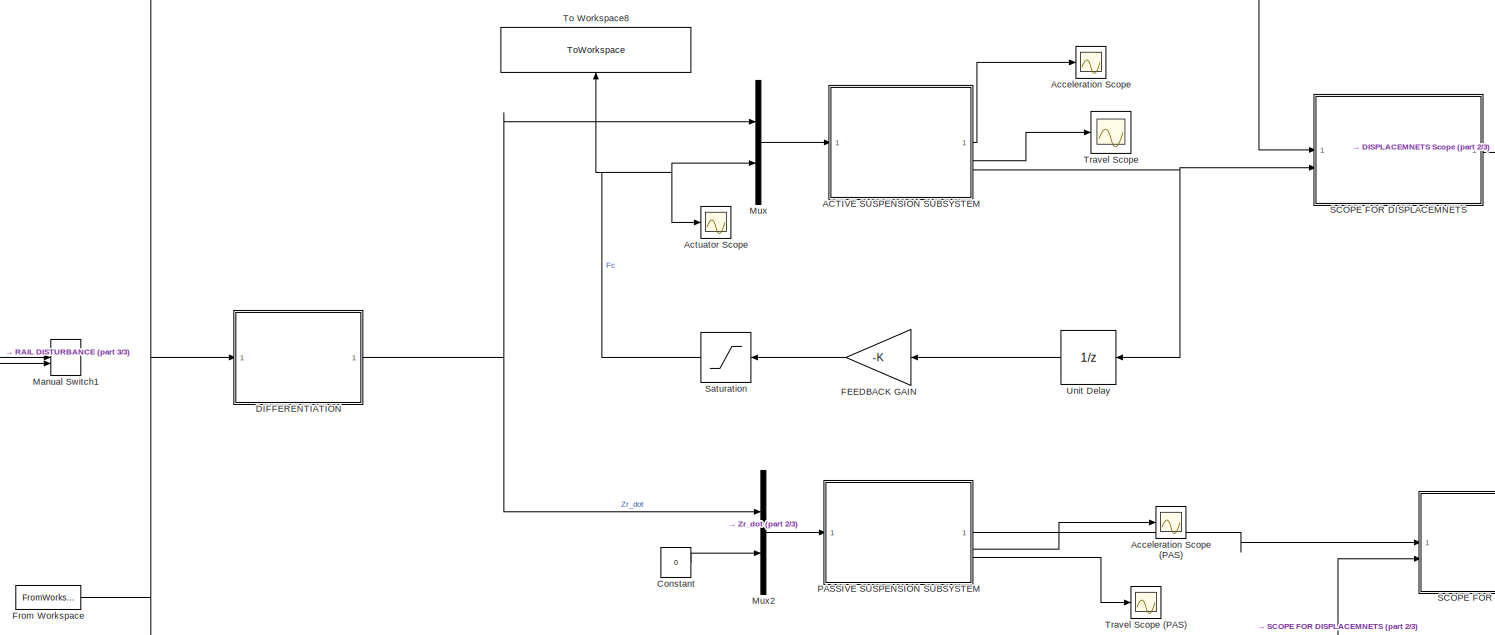
[diagram: root canvas - part 1/3, most of the canvas]
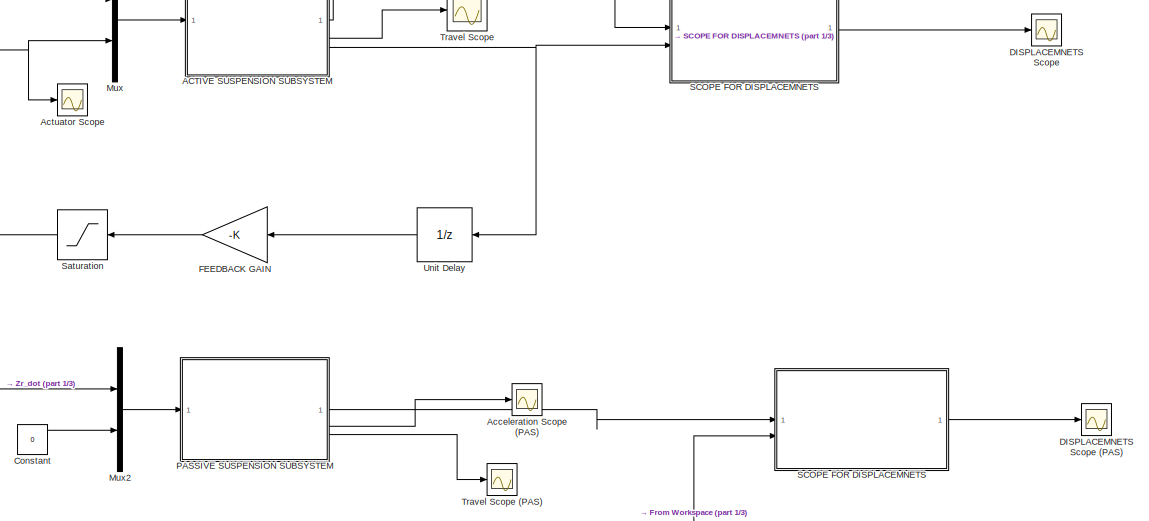
[diagram: root canvas - part 2/3, middle right region]
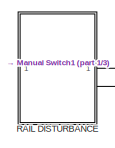
[diagram: root canvas - part 3/3, middle left region]
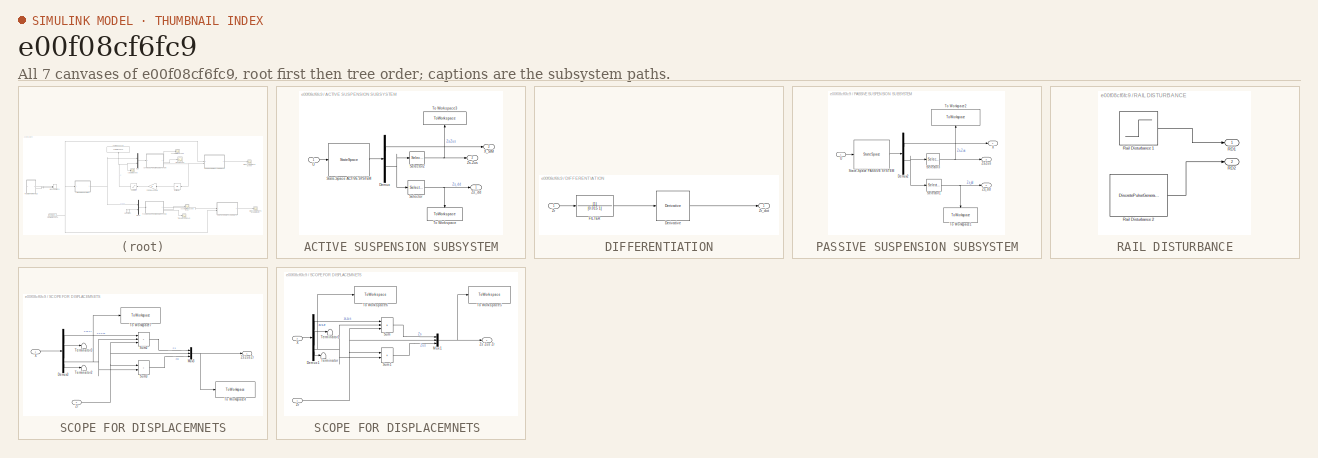
[diagram: thumbnail index - all 7 canvases of the model, root first then tree order]
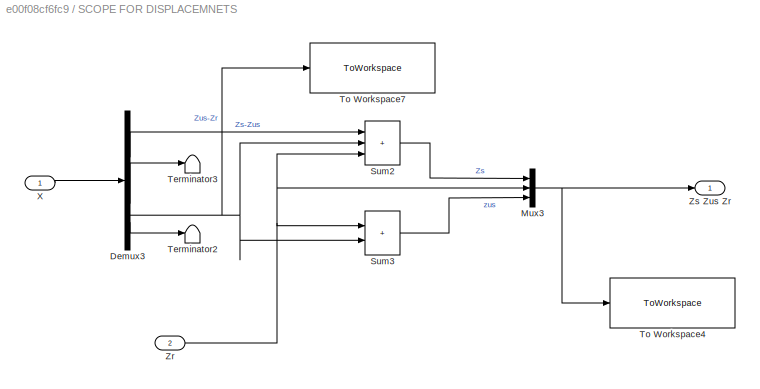
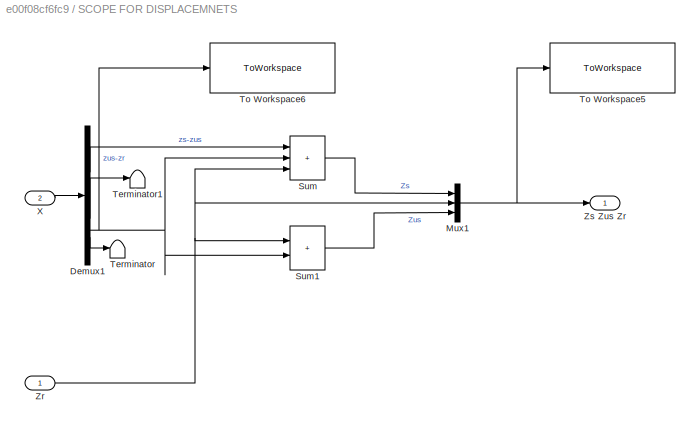
MODEL slx_e00f08cf6fc9
KIND model
CONFIG AbsTol = auto
CONFIG EnableMultiTasking = off
CONFIG FixedStep = 0.001
CONFIG MaxStep = auto
CONFIG MinStep = auto
CONFIG RelTol = 1e-3
CONFIG SampleTimeConstraint = Unconstrained
CONFIG SolverName = ode1
CONFIG StartTime = 0.0
CONFIG StopTime = Sim_Time
BLOCK [SubSystem] ACTIVE SUSPENSION SUBSYSTEM
BLOCK [Demux] ACTIVE SUSPENSION SUBSYSTEM/Demux
  Outputs = [4 2]
BLOCK [Selector] ACTIVE SUSPENSION SUBSYSTEM/Selector
  IndexOptions = Index vector (dialog)
  Indices = [2]
  InputPortWidth = 2
  OutputSizes = 1
BLOCK [Selector] ACTIVE SUSPENSION SUBSYSTEM/Selector2
  IndexOptions = Index vector (dialog)
  Indices = [1]
  InputPortWidth = 2
  OutputSizes = 1
BLOCK [StateSpace] ACTIVE SUSPENSION SUBSYSTEM/State-Space ACTIVE SYSTEM
  A = A
  B = B
  C = cat(1,eye(4), C)
  D = D
  InitialCondition = 0
BLOCK [ToWorkspace] ACTIVE SUSPENSION SUBSYSTEM/To Workspace
  FixptAsFi = on
  MaxDataPoints = inf
  NameLocation = left
  SampleTime = -1
  SaveFormat = Timeseries
  VariableName = Acceleration_ACT
BLOCK [ToWorkspace] ACTIVE SUSPENSION SUBSYSTEM/To Workspace3
  FixptAsFi = on
  MaxDataPoints = inf
  NameLocation = right
  SampleTime = -1
  SaveFormat = Timeseries
  VariableName = Suspension_Travel_ACT
BLOCK [Inport] ACTIVE SUSPENSION SUBSYSTEM/U
BLOCK [Outport] ACTIVE SUSPENSION SUBSYSTEM/X_SIM
  Port = 3
BLOCK [Outport] ACTIVE SUSPENSION SUBSYSTEM/Zs-Zus
  Port = 2
BLOCK [Outport] ACTIVE SUSPENSION SUBSYSTEM/Zs_dd
BLOCK [Scope] Acceleration Scope
  Floating = off
  NumInputPorts = 1
  ScopeSpecificationString = Simulink.scopes.TimeScopeBlockCfg('CurrentConfiguration', extmgr.ConfigurationSet(extmgr.Configuration('Core','General UI',true),extmgr.Configuration('Core','Source UI',true),extmgr.Configuration('Sources','WiredSimulink',true,'DataLoggingVariableName','ScopeData1'),extmgr.Configuration('Visuals','Time Domain',true,'SerializedDisplays',{struct('MinYLimReal','-3.31444','MaxYLimReal','8.71832','YLab...<+1392ch>
BLOCK [Scope] Acceleration Scope (PAS)
  Floating = off
  NumInputPorts = 1
  ScopeSpecificationString = C++SS(StrPVP('SaveName','ScopeData4'),StrPVP('LimitDataPoints','on'),StrPVP('DataFormat','Array'),StrPVP('Decimation','1'),StrPVP('BlockParamSampleInput','off'))
BLOCK [Scope] Actuator Scope
  Floating = off
  NumInputPorts = 1
  ScopeSpecificationString = Simulink.scopes.TimeScopeBlockCfg('CurrentConfiguration', extmgr.ConfigurationSet(extmgr.Configuration('Core','General UI',true),extmgr.Configuration('Core','Source UI',true),extmgr.Configuration('Sources','WiredSimulink',true,'DataLoggingVariableName','ScopeData3'),extmgr.Configuration('Visuals','Time Domain',true,'SerializedDisplays',{struct('MinYLimReal','-10692.94666','MaxYLimReal','3495.4137'...<+1447ch>
BLOCK [Constant] Constant
  Value = 0
BLOCK [SubSystem] DIFFERENTIATION
BLOCK [Derivative] DIFFERENTIATION/Derivative
BLOCK [TransferFcn] DIFFERENTIATION/FILTER
  Denominator = [0.015 1]
BLOCK [Inport] DIFFERENTIATION/Zr
BLOCK [Outport] DIFFERENTIATION/Zr_dot
BLOCK [Scope] DISPLACEMNETS Scope
  Floating = off
  NumInputPorts = 1
  ScopeSpecificationString = Simulink.scopes.TimeScopeBlockCfg('CurrentConfiguration', extmgr.ConfigurationSet(extmgr.Configuration('Core','General UI',true),extmgr.Configuration('Core','Source UI',true),extmgr.Configuration('Sources','WiredSimulink',true),extmgr.Configuration('Visuals','Time Domain',true,'SerializedDisplays',{struct('MinYLimReal','-0.00929','MaxYLimReal','0.0836','YLabelReal','','MinYLimMag','0.00000','MaxYL...<+1477ch>
BLOCK [Scope] DISPLACEMNETS Scope (PAS)
  Floating = off
  NumInputPorts = 1
  ScopeSpecificationString = C++SS(StrPVP('SaveName','ScopeData5'),StrPVP('LimitDataPoints','on'),StrPVP('DataFormat','Array'),StrPVP('Decimation','1'),StrPVP('BlockParamSampleInput','off'))
BLOCK [Gain] FEEDBACK GAIN
  Gain = -K
  Multiplication = Matrix(K*u)
BLOCK [FromWorkspace] From Workspace
  VariableName = rough_road_simin
BLOCK [ManualSwitch] Manual Switch1
BLOCK [Mux] Mux
  DisplayOption = bar
  Inputs = 2
BLOCK [Mux] Mux2
  DisplayOption = bar
  Inputs = 2
BLOCK [SubSystem] PASSIVE SUSPENSION SUBSYSTEM
BLOCK [Demux] PASSIVE SUSPENSION SUBSYSTEM/Demux2
  Outputs = [4 2]
BLOCK [Selector] PASSIVE SUSPENSION SUBSYSTEM/Selector1
  IndexOptions = Index vector (dialog)
  Indices = [2]
  InputPortWidth = 2
  OutputSizes = 1
BLOCK [Selector] PASSIVE SUSPENSION SUBSYSTEM/Selector3
  IndexOptions = Index vector (dialog)
  Indices = [1]
  InputPortWidth = 2
  OutputSizes = 1
BLOCK [StateSpace] PASSIVE SUSPENSION SUBSYSTEM/State-Space PASSIVE SYSTEM
  A = A
  B = B
  C = cat(1,eye(4), C)
  D = D
  InitialCondition = 0
BLOCK [ToWorkspace] PASSIVE SUSPENSION SUBSYSTEM/To Workspace1
  FixptAsFi = on
  MaxDataPoints = inf
  NameLocation = left
  SampleTime = -1
  SaveFormat = Timeseries
  VariableName = Acceleration_PAS
BLOCK [ToWorkspace] PASSIVE SUSPENSION SUBSYSTEM/To Workspace2
  FixptAsFi = on
  MaxDataPoints = inf
  NameLocation = right
  SampleTime = -1
  SaveFormat = Timeseries
  VariableName = Suspension_Travel_PAS
BLOCK [Inport] PASSIVE SUSPENSION SUBSYSTEM/U
BLOCK [Outport] PASSIVE SUSPENSION SUBSYSTEM/X
BLOCK [Outport] PASSIVE SUSPENSION SUBSYSTEM/Zs-Zus
  Port = 3
BLOCK [Outport] PASSIVE SUSPENSION SUBSYSTEM/Zs_dd
  Port = 2
BLOCK [SubSystem] RAIL DISTURBANCE
BLOCK [Outport] RAIL DISTURBANCE/RD1
BLOCK [Outport] RAIL DISTURBANCE/RD2
  Port = 2
BLOCK [Step] RAIL DISTURBANCE/Rail Disturbance 1
  SampleTime = 0
  Time = 0
BLOCK [DiscretePulseGenerator] RAIL DISTURBANCE/Rail Disturbance 2
  Amplitude = 0.1
  Period = 6
  PhaseDelay = .1
  PulseType = Time based
  PulseWidth = 50
BLOCK [SubSystem] SCOPE FOR DISPLACEMNETS
BLOCK [SubSystem] SCOPE FOR DISPLACEMNETS 
BLOCK [Demux] SCOPE FOR DISPLACEMNETS /Demux1
BLOCK [Mux] SCOPE FOR DISPLACEMNETS /Mux1
  DisplayOption = bar
  Inputs = 3
BLOCK [Sum] SCOPE FOR DISPLACEMNETS /Sum
  IconShape = rectangular
  Inputs = +++
BLOCK [Sum] SCOPE FOR DISPLACEMNETS /Sum1
  IconShape = rectangular
BLOCK [Terminator] SCOPE FOR DISPLACEMNETS /Terminator
BLOCK [Terminator] SCOPE FOR DISPLACEMNETS /Terminator1
BLOCK [ToWorkspace] SCOPE FOR DISPLACEMNETS /To Workspace5
  FixptAsFi = on
  MaxDataPoints = inf
  SampleTime = -1
  SaveFormat = Timeseries
  VariableName = Displacement_ACT
BLOCK [ToWorkspace] SCOPE FOR DISPLACEMNETS /To Workspace6
  FixptAsFi = on
  MaxDataPoints = inf
  SampleTime = -1
  SaveFormat = Timeseries
  VariableName = Deflection_ACT
BLOCK [Inport] SCOPE FOR DISPLACEMNETS /X
  Port = 2
BLOCK [Inport] SCOPE FOR DISPLACEMNETS /Zr
BLOCK [Outport] SCOPE FOR DISPLACEMNETS /Zs Zus Zr
BLOCK [Demux] SCOPE FOR DISPLACEMNETS/Demux3
BLOCK [Mux] SCOPE FOR DISPLACEMNETS/Mux3
  DisplayOption = bar
  Inputs = 3
BLOCK [Sum] SCOPE FOR DISPLACEMNETS/Sum2
  IconShape = rectangular
  Inputs = +++
BLOCK [Sum] SCOPE FOR DISPLACEMNETS/Sum3
  IconShape = rectangular
BLOCK [Terminator] SCOPE FOR DISPLACEMNETS/Terminator2
BLOCK [Terminator] SCOPE FOR DISPLACEMNETS/Terminator3
BLOCK [ToWorkspace] SCOPE FOR DISPLACEMNETS/To Workspace4
  FixptAsFi = on
  MaxDataPoints = inf
  SampleTime = -1
  SaveFormat = Timeseries
  VariableName = Displacement_PAS
BLOCK [ToWorkspace] SCOPE FOR DISPLACEMNETS/To Workspace7
  FixptAsFi = on
  MaxDataPoints = inf
  SampleTime = -1
  SaveFormat = Timeseries
  VariableName = Deflection_PAS
BLOCK [Inport] SCOPE FOR DISPLACEMNETS/X
BLOCK [Inport] SCOPE FOR DISPLACEMNETS/Zr
  Port = 2
BLOCK [Outport] SCOPE FOR DISPLACEMNETS/Zs Zus Zr
BLOCK [Saturate] Saturation
  LowerLimit = -46730
  UpperLimit = 46730
BLOCK [ToWorkspace] To Workspace8
  FixptAsFi = on
  MaxDataPoints = inf
  NameLocation = right
  SampleTime = -1
  SaveFormat = Timeseries
  VariableName = ACTUATOR_FORCE
BLOCK [Scope] Travel Scope
  Floating = off
  NumInputPorts = 1
  ScopeSpecificationString = C++SS(StrPVP('SaveName','ScopeData2'),StrPVP('LimitDataPoints','on'),StrPVP('DataFormat','Array'),StrPVP('Decimation','1'),StrPVP('BlockParamSampleInput','off'))
BLOCK [Scope] Travel Scope (PAS)
  Floating = off
  NumInputPorts = 1
  ScopeSpecificationString = C++SS(StrPVP('SaveName','ScopeData3'),StrPVP('LimitDataPoints','on'),StrPVP('DataFormat','Array'),StrPVP('Decimation','1'),StrPVP('BlockParamSampleInput','off'))
BLOCK [UnitDelay] Unit Delay
  HasFrameUpgradeWarning = on
  NameLocation = top
  SampleTime = -1
LINE ACTIVE SUSPENSION SUBSYSTEM/Demux:1 -> ACTIVE SUSPENSION SUBSYSTEM/X_SIM:1
NET ACTIVE SUSPENSION SUBSYSTEM/Demux:2 -> ACTIVE SUSPENSION SUBSYSTEM/Selector2:1, ACTIVE SUSPENSION SUBSYSTEM/Selector:1
NET ACTIVE SUSPENSION SUBSYSTEM/Selector2:1 -> ACTIVE SUSPENSION SUBSYSTEM/To Workspace3:1, ACTIVE SUSPENSION SUBSYSTEM/Zs-Zus:1
NET ACTIVE SUSPENSION SUBSYSTEM/Selector:1 -> ACTIVE SUSPENSION SUBSYSTEM/To Workspace:1, ACTIVE SUSPENSION SUBSYSTEM/Zs_dd:1
LINE ACTIVE SUSPENSION SUBSYSTEM/State-Space ACTIVE SYSTEM:1 -> ACTIVE SUSPENSION SUBSYSTEM/Demux:1
LINE ACTIVE SUSPENSION SUBSYSTEM/U:1 -> ACTIVE SUSPENSION SUBSYSTEM/State-Space ACTIVE SYSTEM:1
LINE ACTIVE SUSPENSION SUBSYSTEM:1 -> Acceleration Scope:1
LINE ACTIVE SUSPENSION SUBSYSTEM:2 -> Travel Scope:1
NET ACTIVE SUSPENSION SUBSYSTEM:3 -> SCOPE FOR DISPLACEMNETS :2, Unit Delay:1
LINE Constant:1 -> Mux2:2
LINE DIFFERENTIATION/Derivative:1 -> DIFFERENTIATION/Zr_dot:1
LINE DIFFERENTIATION/FILTER:1 -> DIFFERENTIATION/Derivative:1
LINE DIFFERENTIATION/Zr:1 -> DIFFERENTIATION/FILTER:1
NET DIFFERENTIATION:1 -> Mux2:1, Mux:1
LINE FEEDBACK GAIN:1 -> Saturation:1
NET From Workspace:1 -> DIFFERENTIATION:1, SCOPE FOR DISPLACEMNETS :1, SCOPE FOR DISPLACEMNETS:2
LINE Mux2:1 -> PASSIVE SUSPENSION SUBSYSTEM:1
LINE Mux:1 -> ACTIVE SUSPENSION SUBSYSTEM:1
LINE PASSIVE SUSPENSION SUBSYSTEM/Demux2:1 -> PASSIVE SUSPENSION SUBSYSTEM/X:1
NET PASSIVE SUSPENSION SUBSYSTEM/Demux2:2 -> PASSIVE SUSPENSION SUBSYSTEM/Selector1:1, PASSIVE SUSPENSION SUBSYSTEM/Selector3:1
NET PASSIVE SUSPENSION SUBSYSTEM/Selector1:1 -> PASSIVE SUSPENSION SUBSYSTEM/To Workspace1:1, PASSIVE SUSPENSION SUBSYSTEM/Zs_dd:1
NET PASSIVE SUSPENSION SUBSYSTEM/Selector3:1 -> PASSIVE SUSPENSION SUBSYSTEM/To Workspace2:1, PASSIVE SUSPENSION SUBSYSTEM/Zs-Zus:1
LINE PASSIVE SUSPENSION SUBSYSTEM/State-Space PASSIVE SYSTEM:1 -> PASSIVE SUSPENSION SUBSYSTEM/Demux2:1
LINE PASSIVE SUSPENSION SUBSYSTEM/U:1 -> PASSIVE SUSPENSION SUBSYSTEM/State-Space PASSIVE SYSTEM:1
LINE PASSIVE SUSPENSION SUBSYSTEM:1 -> SCOPE FOR DISPLACEMNETS:1
LINE PASSIVE SUSPENSION SUBSYSTEM:2 -> Acceleration Scope (PAS):1
LINE PASSIVE SUSPENSION SUBSYSTEM:3 -> Travel Scope (PAS):1
LINE RAIL DISTURBANCE/Rail Disturbance 1:1 -> RAIL DISTURBANCE/RD1:1
LINE RAIL DISTURBANCE/Rail Disturbance 2:1 -> RAIL DISTURBANCE/RD2:1
LINE RAIL DISTURBANCE:1 -> Manual Switch1:1
LINE RAIL DISTURBANCE:2 -> Manual Switch1:2
LINE SCOPE FOR DISPLACEMNETS /Demux1:1 -> SCOPE FOR DISPLACEMNETS /Sum:1
LINE SCOPE FOR DISPLACEMNETS /Demux1:2 -> SCOPE FOR DISPLACEMNETS /Terminator1:1
NET SCOPE FOR DISPLACEMNETS /Demux1:3 -> SCOPE FOR DISPLACEMNETS /Sum1:2, SCOPE FOR DISPLACEMNETS /Sum:2, SCOPE FOR DISPLACEMNETS /To Workspace6:1
LINE SCOPE FOR DISPLACEMNETS /Demux1:4 -> SCOPE FOR DISPLACEMNETS /Terminator:1
NET SCOPE FOR DISPLACEMNETS /Mux1:1 -> SCOPE FOR DISPLACEMNETS /To Workspace5:1, SCOPE FOR DISPLACEMNETS /Zs Zus Zr:1
LINE SCOPE FOR DISPLACEMNETS /Sum1:1 -> SCOPE FOR DISPLACEMNETS /Mux1:3
LINE SCOPE FOR DISPLACEMNETS /Sum:1 -> SCOPE FOR DISPLACEMNETS /Mux1:1
LINE SCOPE FOR DISPLACEMNETS /X:1 -> SCOPE FOR DISPLACEMNETS /Demux1:1
NET SCOPE FOR DISPLACEMNETS /Zr:1 -> SCOPE FOR DISPLACEMNETS /Mux1:2, SCOPE FOR DISPLACEMNETS /Sum1:1, SCOPE FOR DISPLACEMNETS /Sum:3
LINE SCOPE FOR DISPLACEMNETS :1 -> DISPLACEMNETS Scope:1
LINE SCOPE FOR DISPLACEMNETS/Demux3:1 -> SCOPE FOR DISPLACEMNETS/Sum2:1
LINE SCOPE FOR DISPLACEMNETS/Demux3:2 -> SCOPE FOR DISPLACEMNETS/Terminator3:1
NET SCOPE FOR DISPLACEMNETS/Demux3:3 -> SCOPE FOR DISPLACEMNETS/Sum2:2, SCOPE FOR DISPLACEMNETS/Sum3:2, SCOPE FOR DISPLACEMNETS/To Workspace7:1
LINE SCOPE FOR DISPLACEMNETS/Demux3:4 -> SCOPE FOR DISPLACEMNETS/Terminator2:1
NET SCOPE FOR DISPLACEMNETS/Mux3:1 -> SCOPE FOR DISPLACEMNETS/To Workspace4:1, SCOPE FOR DISPLACEMNETS/Zs Zus Zr:1
LINE SCOPE FOR DISPLACEMNETS/Sum2:1 -> SCOPE FOR DISPLACEMNETS/Mux3:1
LINE SCOPE FOR DISPLACEMNETS/Sum3:1 -> SCOPE FOR DISPLACEMNETS/Mux3:3
LINE SCOPE FOR DISPLACEMNETS/X:1 -> SCOPE FOR DISPLACEMNETS/Demux3:1
NET SCOPE FOR DISPLACEMNETS/Zr:1 -> SCOPE FOR DISPLACEMNETS/Mux3:2, SCOPE FOR DISPLACEMNETS/Sum2:3, SCOPE FOR DISPLACEMNETS/Sum3:1
LINE SCOPE FOR DISPLACEMNETS:1 -> DISPLACEMNETS Scope (PAS):1
NET Saturation:1 -> Actuator Scope:1, Mux:2, To Workspace8:1
LINE Unit Delay:1 -> FEEDBACK GAIN:1
note: NET lines group one-source signal fan-out (src -> all destinations, sorted); 1:1 wires keep LINE
